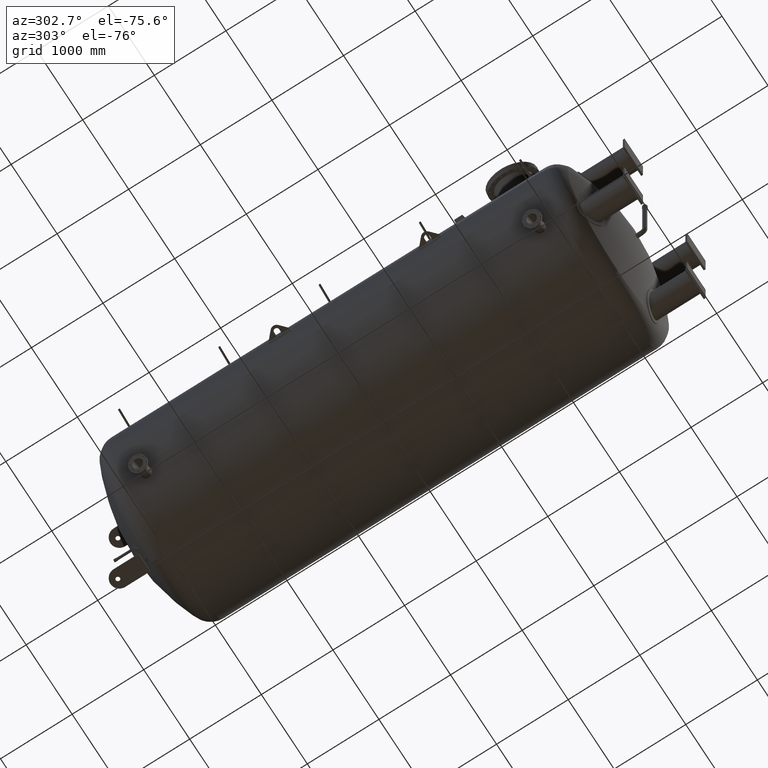
[diagram: clean part render]
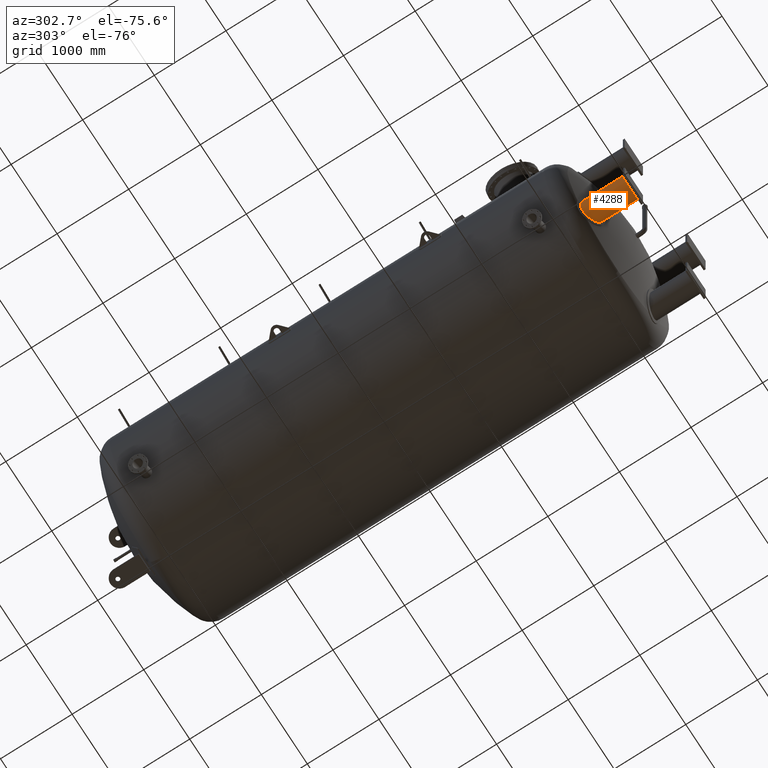
[diagram: same view with one face highlighted and labeled with its STEP entity id]
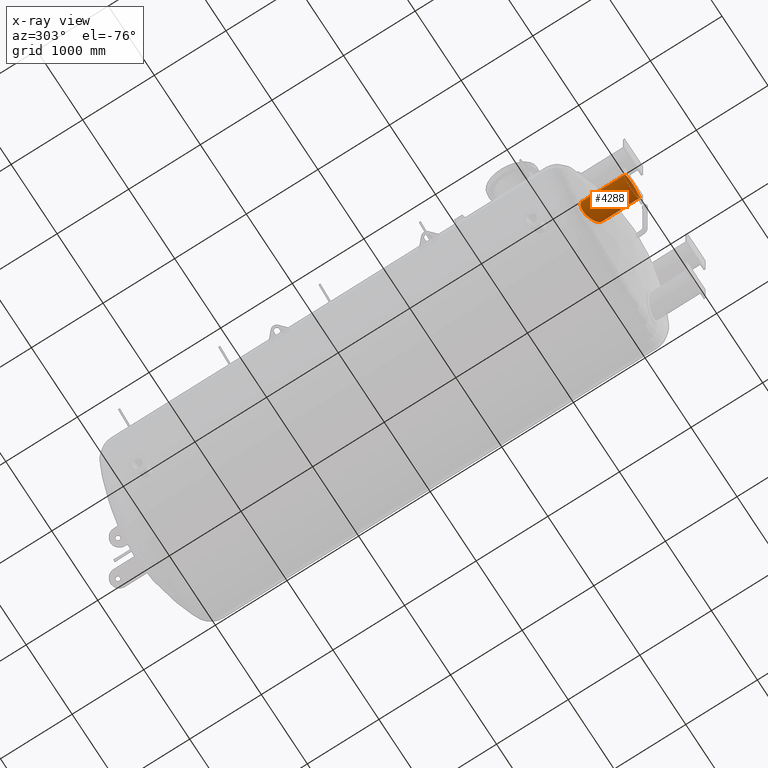
[diagram: x-ray of the same camera — body ghosted, the highlighted face saturated]
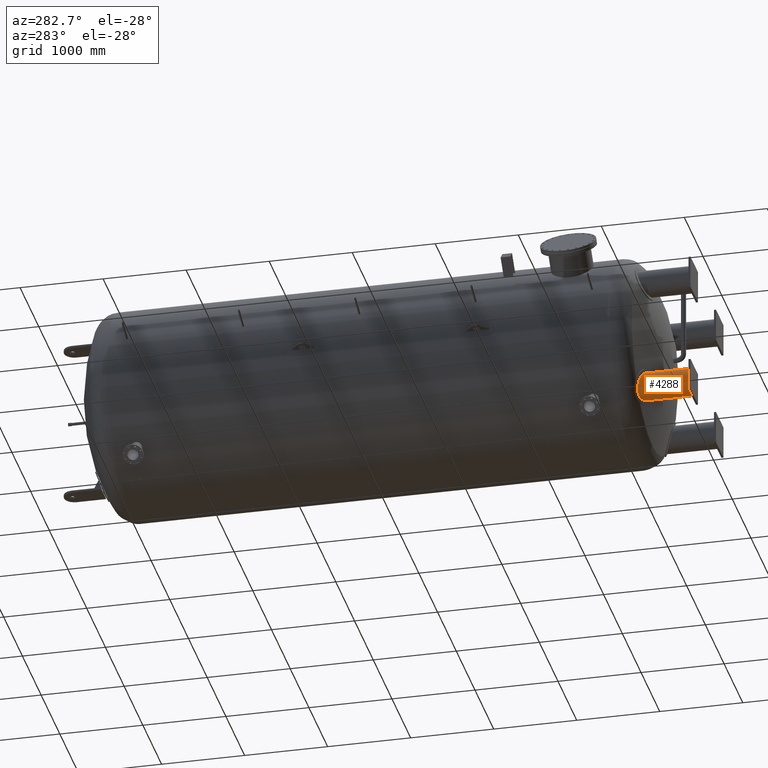
[diagram: same view with one face highlighted and labeled with its STEP entity id]
A machine part, auxiliary view. The second image highlights one B-rep face of the part: STEP entity #4288.
The next image is the same camera in x-ray: the body ghosted, the highlighted face saturated — about 0% of this face is hidden behind the body in this view.
A second angle (auxiliary view) of the same face is appended — the face is thin or edge-on in the first view.
In plain terms, the highlighted cylindrical surface (bore or boss wall) has radius 161.95 mm, axis along (-0, 1, -0).
Its self-contained STEP definition (entity closure, byte-faithful):
#223=B_SPLINE_CURVE_WITH_KNOTS('',3,(#8562,#8563,#8564,#8565,#8566,#8567,
#8568,#8569,#8570,#8571,#8572,#8573,#8574,#8575,#8576,#8577,#8578,#8579,
#8580,#8581,#8582,#8583,#8584,#8585,#8586,#8587,#8588,#8589,#8590,#8591,
#8592,#8593,#8594,#8595,#8596,#8597,#8598,#8599,#8600,#8601,#8602,#8603,
#8604,#8605,#8606,#8607,#8608,#8609,#8610,#8611,#8612,#8613,#8614,#8615,
#8616,#8617,#8618,#8619,#8620),.UNSPECIFIED.,.F.,.F.,(4,2,2,2,2,2,2,2,2,
2,2,2,2,2,3,2,2,2,2,2,2,2,2,2,2,2,2,2,4),(-43.8749015460364,-41.719634593549,
-38.680543417589,-35.3588689252381,-32.0371944328872,-28.7155199405363,
-25.3938454481855,-22.0831768339439,-18.7725082197024,-15.4618396054609,
-12.1511709912193,-9.1133782434145,-6.07558549560966,-3.03779274780483,
0.,3.03779274780483,6.07558549560966,9.11337824341449,12.1511709912193,
15.4618396054609,18.7725082197024,22.0831768339439,25.3938454481855,28.7155199405364,
32.0371944328872,35.3588689252381,38.680543417589,41.719634593549,43.8749015429483),
 .UNSPECIFIED.);
#224=B_SPLINE_CURVE_WITH_KNOTS('',3,(#8622,#8623,#8624,#8625,#8626,#8627,
#8628,#8629,#8630,#8631),.UNSPECIFIED.,.F.,.F.,(4,2,2,2,4),(-7.27324384775786,
-7.25558316479043,-6.02137948163287,-4.23839767519308,-0.00508084654473815),
 .UNSPECIFIED.);
#225=B_SPLINE_CURVE_WITH_KNOTS('',3,(#8635,#8636,#8637,#8638,#8639,#8640,
#8641,#8642,#8643,#8644),.UNSPECIFIED.,.F.,.F.,(4,2,2,2,4),(-14.5344414975356,
-12.2160615352072,-10.2352968612784,-8.48346467803212,-7.27324384775786),
 .UNSPECIFIED.);
#633=FACE_OUTER_BOUND('',#890,.T.);
#890=EDGE_LOOP('',(#3189,#3190,#3191,#3192,#3193,#3194));
#1258=LINE('',#8633,#1484);
#1484=VECTOR('',#5745,161.95);
#1710=CIRCLE('',#5027,161.95);
#2046=VERTEX_POINT('',#8560);
#2047=VERTEX_POINT('',#8561);
#2048=VERTEX_POINT('',#8621);
#2049=VERTEX_POINT('',#8632);
#2477=EDGE_CURVE('',#2046,#2047,#223,.T.);
#2478=EDGE_CURVE('',#2048,#2046,#224,.T.);
#2479=EDGE_CURVE('',#2048,#2049,#1258,.T.);
#2480=EDGE_CURVE('',#2049,#2049,#1710,.T.);
#2481=EDGE_CURVE('',#2047,#2048,#225,.T.);
#3189=ORIENTED_EDGE('',*,*,#2477,.F.);
#3190=ORIENTED_EDGE('',*,*,#2478,.F.);
#3191=ORIENTED_EDGE('',*,*,#2479,.T.);
#3192=ORIENTED_EDGE('',*,*,#2480,.T.);
#3193=ORIENTED_EDGE('',*,*,#2479,.F.);
#3194=ORIENTED_EDGE('',*,*,#2481,.F.);
#4061=CYLINDRICAL_SURFACE('',#5026,161.95);
#4288=ADVANCED_FACE('',(#633),#4061,.T.);
#5026=AXIS2_PLACEMENT_3D('',#8559,#5743,#5744);
#5027=AXIS2_PLACEMENT_3D('',#8634,#5746,#5747);
#5743=DIRECTION('center_axis',(0.,-1.,0.));
#5744=DIRECTION('ref_axis',(1.,0.,0.));
#5745=DIRECTION('',(0.,1.,0.));
#5746=DIRECTION('center_axis',(0.,-1.,0.));
#5747=DIRECTION('ref_axis',(1.,0.,0.));
#8559=CARTESIAN_POINT('Origin',(-962.5,896.4735,0.));
#8560=CARTESIAN_POINT('',(-1108.64185453249,275.463262060767,-69.7879706955644));
#8561=CARTESIAN_POINT('',(-1108.64185453249,275.463262060767,69.7879706955644));
#8562=CARTESIAN_POINT('Ctrl Pts',(-1108.64185453249,275.463262060766,-69.7879706955648));
#8563=CARTESIAN_POINT('Ctrl Pts',(-1105.41552373822,276.83591707674,-76.5441775448217));
#8564=CARTESIAN_POINT('Ctrl Pts',(-1101.73700456455,278.399701282065,-83.0340712764086));
#8565=CARTESIAN_POINT('Ctrl Pts',(-1092.00529279425,282.531601544531,-97.7913539744239));
#8566=CARTESIAN_POINT('Ctrl Pts',(-1085.59057010638,285.251155538473,-105.692735589609));
#8567=CARTESIAN_POINT('Ctrl Pts',(-1071.43966472401,291.238239667365,-120.302832148537));
#8568=CARTESIAN_POINT('Ctrl Pts',(-1063.10689325814,294.757219044128,-127.382141115492));
#8569=CARTESIAN_POINT('Ctrl Pts',(-1045.02435959937,302.372736478761,-139.777276137274));
#8570=CARTESIAN_POINT('Ctrl Pts',(-1035.27530449937,306.468860263303,-145.094388209197));
#8571=CARTESIAN_POINT('Ctrl Pts',(-1015.00221921004,314.961782470389,-153.597345947007));
#8572=CARTESIAN_POINT('Ctrl Pts',(-1004.4644120176,319.364282299651,-156.7891518986));
#8573=CARTESIAN_POINT('Ctrl Pts',(-983.328083490661,328.168825432127,-160.96596215599));
#8574=CARTESIAN_POINT('Ctrl Pts',(-972.729394002871,332.570923518746,-161.95));
#8575=CARTESIAN_POINT('Ctrl Pts',(-952.30449958417,341.031358891183,-161.95));
#8576=CARTESIAN_POINT('Ctrl Pts',(-941.731440271234,345.399133032437,-160.972384889028));
#8577=CARTESIAN_POINT('Ctrl Pts',(-920.630302372584,354.09128877919,-156.813169715615));
#8578=CARTESIAN_POINT('Ctrl Pts',(-910.102095327939,358.41575525099,-153.632398770777));
#8579=CARTESIAN_POINT('Ctrl Pts',(-889.837283720846,366.717847762831,-145.150216331407));
#8580=CARTESIAN_POINT('Ctrl Pts',(-880.086706190417,370.701277482511,-139.842655353621));
#8581=CARTESIAN_POINT('Ctrl Pts',(-861.997036732351,378.07515446746,-127.464009166469));
#8582=CARTESIAN_POINT('Ctrl Pts',(-853.658721480231,381.465396586414,-120.391666794536));
#8583=CARTESIAN_POINT('Ctrl Pts',(-839.478909927262,387.22093440658,-105.776010329841));
#8584=CARTESIAN_POINT('Ctrl Pts',(-833.045166047876,389.827434823394,-97.8601718030551));
#8585=CARTESIAN_POINT('Ctrl Pts',(-821.62940436348,394.446115042236,-80.5645241269514));
#8586=CARTESIAN_POINT('Ctrl Pts',(-816.647256127079,396.458460098729,-71.1848451980536));
#8587=CARTESIAN_POINT('Ctrl Pts',(-808.608644136581,399.702680303904,-51.5534319336244));
#8588=CARTESIAN_POINT('Ctrl Pts',(-805.545369246653,400.937382991561,-41.2840130250237));
#8589=CARTESIAN_POINT('Ctrl Pts',(-801.515575669774,402.56122775639,-20.570390638457));
#8590=CARTESIAN_POINT('Ctrl Pts',(-800.55,402.950014132649,-10.1259758260161));
#8591=CARTESIAN_POINT('Ctrl Pts',(-800.55,402.950014132649,0.));
#8592=CARTESIAN_POINT('Ctrl Pts',(-800.55,402.950014132649,10.1259758260161));
#8593=CARTESIAN_POINT('Ctrl Pts',(-801.515575669774,402.56122775639,20.5703906384569));
#8594=CARTESIAN_POINT('Ctrl Pts',(-805.545369246653,400.937382991561,41.2840130250236));
#8595=CARTESIAN_POINT('Ctrl Pts',(-808.608644136581,399.702680303904,51.5534319336242));
#8596=CARTESIAN_POINT('Ctrl Pts',(-816.64725612708,396.458460098729,71.1848451980534));
#8597=CARTESIAN_POINT('Ctrl Pts',(-821.62940436348,394.446115042236,80.5645241269514));
#8598=CARTESIAN_POINT('Ctrl Pts',(-833.045166047876,389.827434823394,97.8601718030551));
#8599=CARTESIAN_POINT('Ctrl Pts',(-839.478909927262,387.22093440658,105.776010329841));
#8600=CARTESIAN_POINT('Ctrl Pts',(-853.65872148023,381.465396586414,120.391666794536));
#8601=CARTESIAN_POINT('Ctrl Pts',(-861.997036732351,378.07515446746,127.464009166469));
#8602=CARTESIAN_POINT('Ctrl Pts',(-880.086706190417,370.701277482511,139.842655353621));
#8603=CARTESIAN_POINT('Ctrl Pts',(-889.837283720846,366.717847762831,145.150216331407));
#8604=CARTESIAN_POINT('Ctrl Pts',(-910.102095327939,358.41575525099,153.632398770777));
#8605=CARTESIAN_POINT('Ctrl Pts',(-920.630302372584,354.09128877919,156.813169715615));
#8606=CARTESIAN_POINT('Ctrl Pts',(-941.731440271234,345.399133032437,160.972384889028));
#8607=CARTESIAN_POINT('Ctrl Pts',(-952.30449958417,341.031358891183,161.95));
#8608=CARTESIAN_POINT('Ctrl Pts',(-972.729394002871,332.570923518746,161.95));
#8609=CARTESIAN_POINT('Ctrl Pts',(-983.328083490661,328.168825432127,160.96596215599));
#8610=CARTESIAN_POINT('Ctrl Pts',(-1004.4644120176,319.364282299651,156.7891518986));
#8611=CARTESIAN_POINT('Ctrl Pts',(-1015.00221921004,314.961782470389,153.597345947007));
#8612=CARTESIAN_POINT('Ctrl Pts',(-1035.27530449937,306.468860263303,145.094388209197));
#8613=CARTESIAN_POINT('Ctrl Pts',(-1045.02435959937,302.372736478761,139.777276137274));
#8614=CARTESIAN_POINT('Ctrl Pts',(-1063.10689325814,294.757219044128,127.382141115492));
#8615=CARTESIAN_POINT('Ctrl Pts',(-1071.43966472401,291.238239667365,120.302832148537));
#8616=CARTESIAN_POINT('Ctrl Pts',(-1085.59057010638,285.251155538473,105.692735589609));
#8617=CARTESIAN_POINT('Ctrl Pts',(-1092.00529279425,282.531601544531,97.7913539744239));
#8618=CARTESIAN_POINT('Ctrl Pts',(-1101.73700455876,278.399701284522,83.034071285182));
#8619=CARTESIAN_POINT('Ctrl Pts',(-1105.41552374488,276.835917073906,76.5441775308727));
#8620=CARTESIAN_POINT('Ctrl Pts',(-1108.64185453249,275.463262060766,69.7879706955648));
#8621=CARTESIAN_POINT('',(-1124.45,268.290636492986,-2.04636961900347E-14));
#8622=CARTESIAN_POINT('Ctrl Pts',(-1124.45,268.290636492986,-2.08292553345458E-14));
#8623=CARTESIAN_POINT('Ctrl Pts',(-1124.45,268.290636492986,-0.0588983240887982));
#8624=CARTESIAN_POINT('Ctrl Pts',(-1124.4499678696,268.290651999053,-0.117797424161035));
#8625=CARTESIAN_POINT('Ctrl Pts',(-1124.44541260943,268.292850356058,-4.29286986983993));
#8626=CARTESIAN_POINT('Ctrl Pts',(-1124.2840518621,268.370859334992,-8.40491190938698));
#8627=CARTESIAN_POINT('Ctrl Pts',(-1123.50754598657,268.744198912253,-18.4305020366657));
#8628=CARTESIAN_POINT('Ctrl Pts',(-1122.72408831368,269.120254437862,-24.3131826429575));
#8629=CARTESIAN_POINT('Ctrl Pts',(-1119.00515647045,270.875979179151,-43.9514721350712));
#8630=CARTESIAN_POINT('Ctrl Pts',(-1114.62287177828,272.918614953392,-57.2632197452463));
#8631=CARTESIAN_POINT('Ctrl Pts',(-1108.64185453249,275.463262060766,-69.7879706955647));
#8632=CARTESIAN_POINT('',(-1124.45,896.4735,1.98331549121914E-14));
#8633=CARTESIAN_POINT('',(-1124.45,896.4735,-1.98331549121914E-14));
#8634=CARTESIAN_POINT('Origin',(-962.5,896.4735,0.));
#8635=CARTESIAN_POINT('Ctrl Pts',(-1108.64185453249,275.463262060766,69.7879706955647));
#8636=CARTESIAN_POINT('Ctrl Pts',(-1111.91860603945,274.069155355982,62.9261786517948));
#8637=CARTESIAN_POINT('Ctrl Pts',(-1114.71956303225,272.821711887431,55.8183673311552));
#8638=CARTESIAN_POINT('Ctrl Pts',(-1118.97457167289,270.884515132131,42.2651974330591));
#8639=CARTESIAN_POINT('Ctrl Pts',(-1120.5596091723,270.142670104452,35.892621525989));
#8640=CARTESIAN_POINT('Ctrl Pts',(-1122.81271070706,269.077862650184,23.6964259951791));
#8641=CARTESIAN_POINT('Ctrl Pts',(-1123.56212325014,268.718007960436,17.9132845446324));
#8642=CARTESIAN_POINT('Ctrl Pts',(-1124.29916944478,268.363553554601,8.06852168867628));
#8643=CARTESIAN_POINT('Ctrl Pts',(-1124.45,268.290636492986,4.03608279543627));
#8644=CARTESIAN_POINT('Ctrl Pts',(-1124.45,268.290636492986,-2.44249065417534E-14));